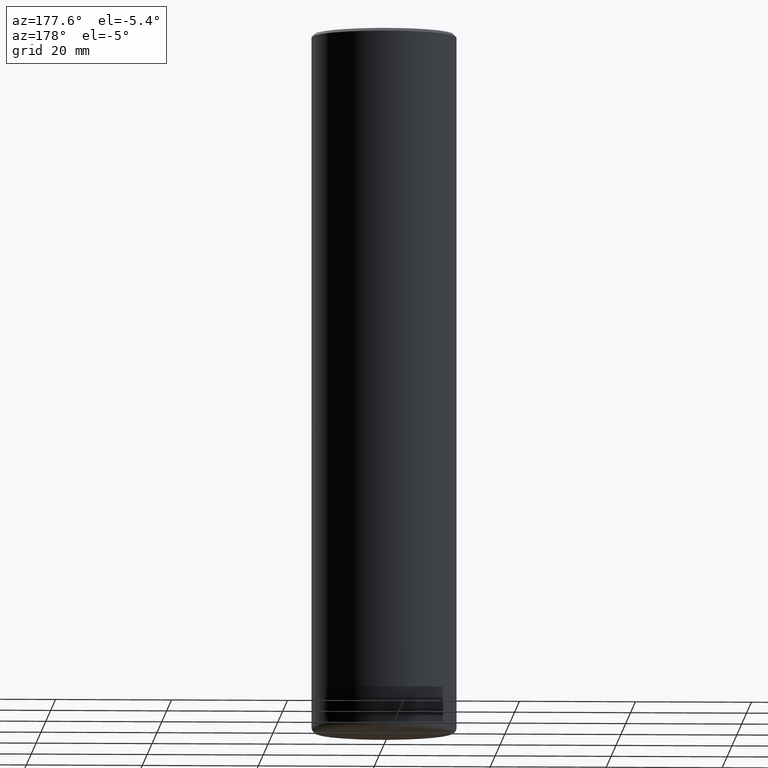
[diagram: clean part render]
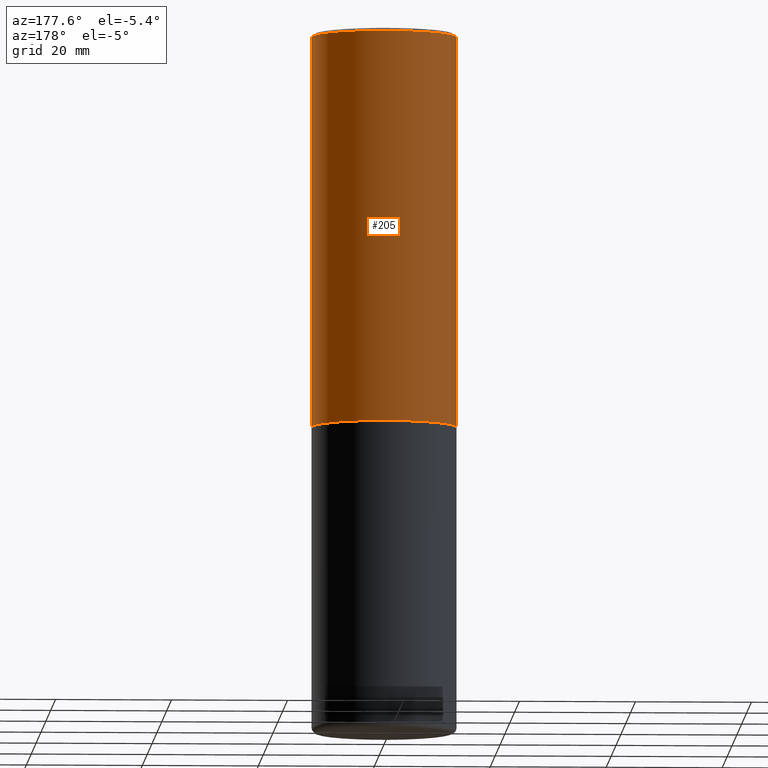
[diagram: same view with one face highlighted and labeled with its STEP entity id]
A machine part, auxiliary view. The second image highlights one B-rep face of the part: STEP entity #205.
In plain terms, the highlighted cylindrical surface (partial cylindrical patch) has radius 12.5006 mm, axis along (-0, 0, 1).
Its self-contained STEP definition (entity closure, byte-faithful):
#8 = AXIS2_PLACEMENT_3D ( 'NONE', #357, #28, #53 ) ;
#28 = DIRECTION ( 'NONE',  ( -2.445468806185136597E-29, 3.491481338843145583E-15, 1.000000000000000000 ) ) ;
#30 = EDGE_CURVE ( 'NONE', #274, #63, #105, .T. ) ;
#32 = CARTESIAN_POINT ( 'NONE',  ( 0.4921500000000000874, -3.436665081823296565E-15, 2.399810400207970163E-29 ) ) ;
#39 = DIRECTION ( 'NONE',  ( -2.445468806185136877E-29, 3.491481338843145188E-15, 1.000000000000000000 ) ) ;
#40 = DIRECTION ( 'NONE',  ( -2.445468806185136877E-29, 3.491481338843145188E-15, 1.000000000000000000 ) ) ;
#42 = CARTESIAN_POINT ( 'NONE',  ( -0.4921499999999999764, 3.366835455046432478E-15, -0.02000000000000010797 ) ) ;
#45 = VECTOR ( 'NONE', #39, 39.37007874015748143 ) ;
#53 = DIRECTION ( 'NONE',  ( 1.000000000000000000, -6.982962677686265922E-15, 4.876176775795935793E-29 ) ) ;
#56 = AXIS2_PLACEMENT_3D ( 'NONE', #383, #277, #414 ) ;
#63 = VERTEX_POINT ( 'NONE', #42 ) ;
#79 = CIRCLE ( 'NONE', #275, 0.4921499999999999764 ) ;
#105 = LINE ( 'NONE', #362, #45 ) ;
#121 = ORIENTED_EDGE ( 'NONE', *, *, #30, .T. ) ;
#123 = EDGE_LOOP ( 'NONE', ( #152, #121, #270, #406 ) ) ;
#152 = ORIENTED_EDGE ( 'NONE', *, *, #416, .T. ) ;
#154 = EDGE_CURVE ( 'NONE', #187, #63, #79, .T. ) ;
#160 = CARTESIAN_POINT ( 'NONE',  ( 0.4921499999999999764, -3.446223716380122349E-15, -0.02000000000000010797 ) ) ;
#172 = CARTESIAN_POINT ( 'NONE',  ( 4.890937612370299433E-31, -6.982962677686328587E-17, -0.02000000000000010797 ) ) ;
#173 = DIRECTION ( 'NONE',  ( 1.000000000000000000, -6.982962677686265922E-15, 0.000000000000000000 ) ) ;
#187 = VERTEX_POINT ( 'NONE', #160 ) ;
#205 = ADVANCED_FACE ( 'NONE', ( #322 ), #390, .T. ) ;
#209 = CARTESIAN_POINT ( 'NONE',  ( 0.4921500000000003094, -1.278056744083532224E-14, -2.676199999999999690 ) ) ;
#223 = LINE ( 'NONE', #32, #252 ) ;
#252 = VECTOR ( 'NONE', #40, 39.37007874015748143 ) ;
#270 = ORIENTED_EDGE ( 'NONE', *, *, #154, .F. ) ;
#274 = VERTEX_POINT ( 'NONE', #401 ) ;
#275 = AXIS2_PLACEMENT_3D ( 'NONE', #172, #307, #173 ) ;
#277 = DIRECTION ( 'NONE',  ( -2.445468806185136597E-29, 3.491481338843145583E-15, 1.000000000000000000 ) ) ;
#291 = EDGE_CURVE ( 'NONE', #379, #187, #223, .T. ) ;
#307 = DIRECTION ( 'NONE',  ( -2.445468806185136597E-29, 3.491481338843145583E-15, 1.000000000000000000 ) ) ;
#322 = FACE_OUTER_BOUND ( 'NONE', #123, .T. ) ;
#327 = CIRCLE ( 'NONE', #56, 0.4921500000000003094 ) ;
#357 = CARTESIAN_POINT ( 'NONE',  ( 0.000000000000000000, 0.000000000000000000, 0.000000000000000000 ) ) ;
#362 = CARTESIAN_POINT ( 'NONE',  ( -0.4921500000000000874, 3.496936074043333686E-15, -2.420853904668952350E-29 ) ) ;
#379 = VERTEX_POINT ( 'NONE', #209 ) ;
#383 = CARTESIAN_POINT ( 'NONE',  ( 6.544563619112662223E-29, -9.343902359012024888E-15, -2.676199999999999690 ) ) ;
#390 = CYLINDRICAL_SURFACE ( 'NONE', #8, 0.4921500000000000874 ) ;
#401 = CARTESIAN_POINT ( 'NONE',  ( -0.4921500000000003094, -1.209929918851106266E-15, -2.676199999999999690 ) ) ;
#406 = ORIENTED_EDGE ( 'NONE', *, *, #291, .F. ) ;
#414 = DIRECTION ( 'NONE',  ( 1.000000000000000000, -6.982962677686265922E-15, 0.000000000000000000 ) ) ;
#416 = EDGE_CURVE ( 'NONE', #379, #274, #327, .T. ) ;